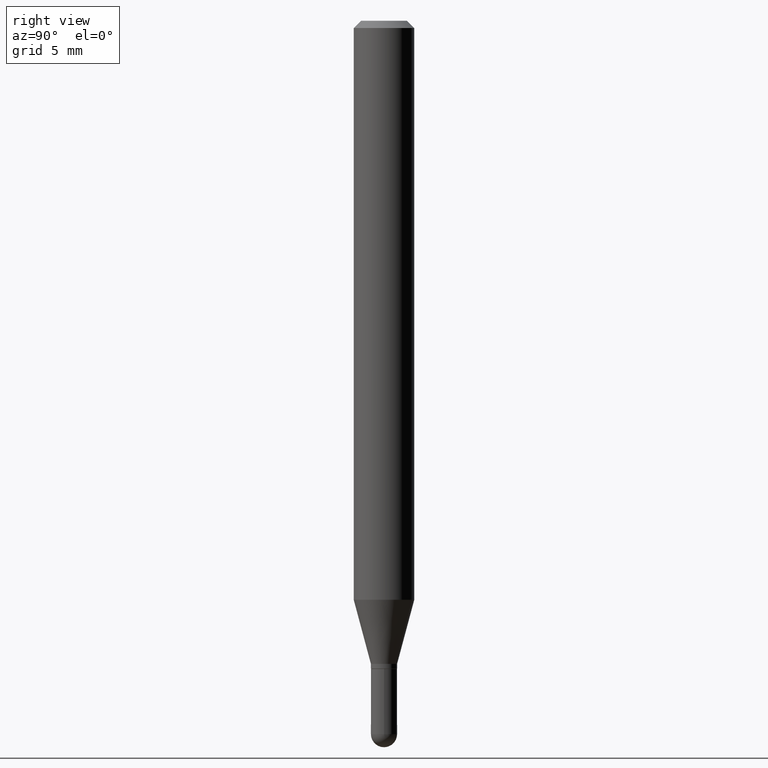
[diagram: clean part render]
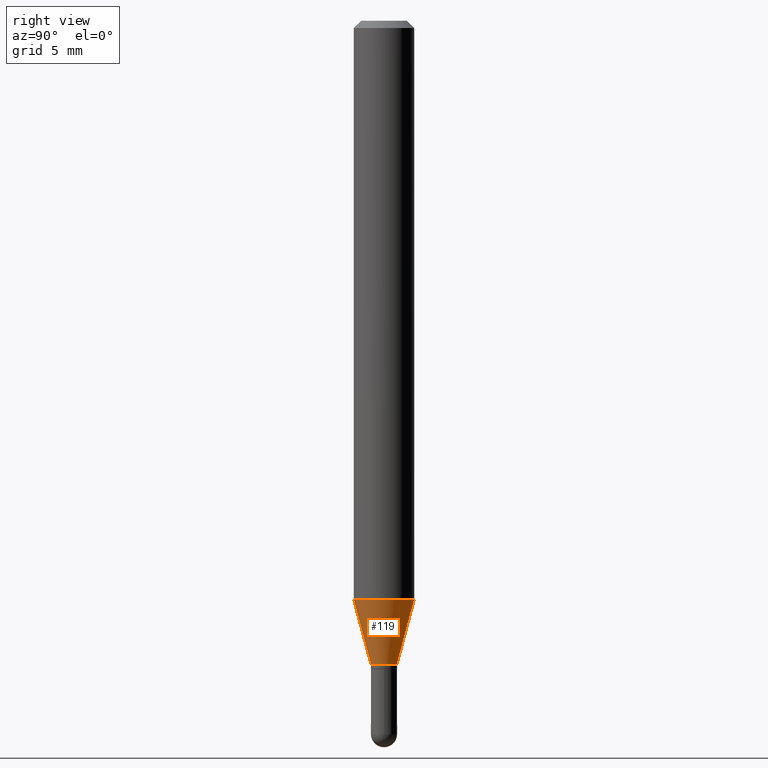
[diagram: same view with one face highlighted and labeled with its STEP entity id]
A machine part, right view. The second image highlights one B-rep face of the part: STEP entity #119.
In plain terms, the highlighted conical surface has half-angle 15 deg.
Its self-contained STEP definition (entity closure, byte-faithful):
#18 = CONICAL_SURFACE ( 'NONE', #446, 0.02699999999999992337, 0.2617993877991510732 ) ;
#29 = CIRCLE ( 'NONE', #70, 0.02699999999999992337 ) ;
#43 = DIRECTION ( 'NONE',  ( -1.807323732225335661E-15, -0.2588190451025189631, 0.9659258262890687563 ) ) ;
#62 = EDGE_CURVE ( 'NONE', #87, #444, #29, .T. ) ;
#67 = DIRECTION ( 'NONE',  ( 1.839019923739605837E-15, 0.2588190451025257355, 0.9659258262890669799 ) ) ;
#70 = AXIS2_PLACEMENT_3D ( 'NONE', #273, #349, #505 ) ;
#87 = VERTEX_POINT ( 'NONE', #96 ) ;
#90 = VERTEX_POINT ( 'NONE', #221 ) ;
#95 = ORIENTED_EDGE ( 'NONE', *, *, #62, .T. ) ;
#96 = CARTESIAN_POINT ( 'NONE',  ( -1.885399922974961558E-16, -0.02700000000000455855, -1.328000000000000513 ) ) ;
#118 = DIRECTION ( 'NONE',  ( -6.982962677686265922E-15, -1.000000000000000000, 0.000000000000000000 ) ) ;
#119 = ADVANCED_FACE ( 'NONE', ( #178 ), #18, .T. ) ;
#125 = EDGE_CURVE ( 'NONE', #486, #90, #164, .T. ) ;
#150 = DIRECTION ( 'NONE',  ( -2.445478454878450853E-29, 3.491467521365150190E-15, 1.000000000000000000 ) ) ;
#154 = EDGE_CURVE ( 'NONE', #87, #486, #318, .T. ) ;
#164 = CIRCLE ( 'NONE', #471, 0.06250000000000000000 ) ;
#166 = ORIENTED_EDGE ( 'NONE', *, *, #154, .F. ) ;
#174 = CARTESIAN_POINT ( 'NONE',  ( 1.918465386552589476E-16, 0.02699999999999528819, -1.328000000000000513 ) ) ;
#178 = FACE_OUTER_BOUND ( 'NONE', #445, .T. ) ;
#180 = ORIENTED_EDGE ( 'NONE', *, *, #125, .F. ) ;
#188 = DIRECTION ( 'NONE',  ( -6.982962677686265922E-15, -1.000000000000000000, 4.370956789862821150E-15 ) ) ;
#221 = CARTESIAN_POINT ( 'NONE',  ( 4.440892098500916068E-16, 0.06249999999999580891, -1.195512196331306232 ) ) ;
#235 = CARTESIAN_POINT ( 'NONE',  ( 3.247595388078583312E-29, -4.636668868372920613E-15, -1.328000000000000513 ) ) ;
#246 = CARTESIAN_POINT ( 'NONE',  ( -4.364351673553626295E-16, -0.06250000000000420497, -1.195512196331305566 ) ) ;
#261 = LINE ( 'NONE', #174, #282 ) ;
#273 = CARTESIAN_POINT ( 'NONE',  ( 3.247595388078583312E-29, -4.636668868372920613E-15, -1.328000000000000513 ) ) ;
#282 = VECTOR ( 'NONE', #67, 39.37007874015748143 ) ;
#316 = DIRECTION ( 'NONE',  ( -2.445478454878450853E-29, 3.491467521365150190E-15, 1.000000000000000000 ) ) ;
#318 = LINE ( 'NONE', #400, #458 ) ;
#347 = EDGE_CURVE ( 'NONE', #444, #90, #261, .T. ) ;
#349 = DIRECTION ( 'NONE',  ( -2.445478454878450853E-29, 3.491467521365150190E-15, 1.000000000000000000 ) ) ;
#353 = CARTESIAN_POINT ( 'NONE',  ( 2.923599318672625307E-29, -4.174092004886671043E-15, -1.195512196331305788 ) ) ;
#367 = CARTESIAN_POINT ( 'NONE',  ( 3.179678742526754374E-16, 0.02699999999999528819, -1.328000000000000513 ) ) ;
#376 = ORIENTED_EDGE ( 'NONE', *, *, #347, .T. ) ;
#400 = CARTESIAN_POINT ( 'NONE',  ( -1.885399922974961558E-16, -0.02700000000000455855, -1.328000000000000513 ) ) ;
#444 = VERTEX_POINT ( 'NONE', #367 ) ;
#445 = EDGE_LOOP ( 'NONE', ( #95, #376, #180, #166 ) ) ;
#446 = AXIS2_PLACEMENT_3D ( 'NONE', #235, #150, #118 ) ;
#458 = VECTOR ( 'NONE', #43, 39.37007874015748854 ) ;
#471 = AXIS2_PLACEMENT_3D ( 'NONE', #353, #316, #188 ) ;
#486 = VERTEX_POINT ( 'NONE', #246 ) ;
#505 = DIRECTION ( 'NONE',  ( -6.982962677686265922E-15, -1.000000000000000000, 0.000000000000000000 ) ) ;